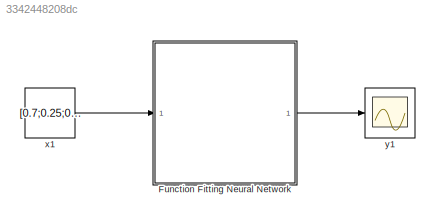
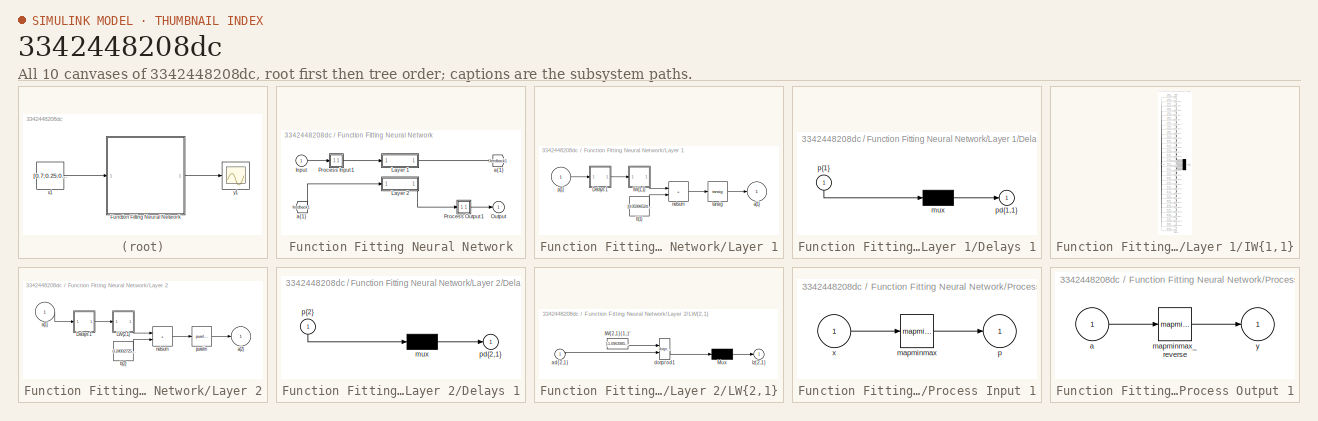
[diagram: thumbnail index - all 10 canvases of the model, root first then tree order]
MODEL slx_3342448208dc
KIND model
CONFIG AbsTol = auto
CONFIG EnableMultiTasking = off
CONFIG FixedStep = auto
CONFIG MaxStep = auto
CONFIG MinStep = auto
CONFIG RelTol = 1e-3
CONFIG SampleTimeConstraint = Unconstrained
CONFIG SolverName = VariableStepAuto
CONFIG StartTime = 0.0
CONFIG StopTime = 10.0
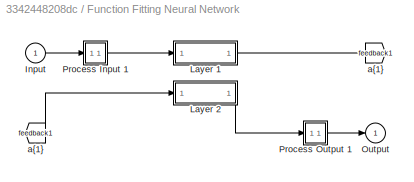
BLOCK [SubSystem] Function Fitting Neural Network
  Ports = [1, 1]
  RequestExecContextInheritance = off
BLOCK [From] Function Fitting Neural Network/ a{1} 
  GotoTag = feedback1
BLOCK [Inport] Function Fitting Neural Network/Input
  PortDimensions = 3
BLOCK [SubSystem] Function Fitting Neural Network/Layer 1
  Ports = [1, 1]
  RequestExecContextInheritance = off
BLOCK [SubSystem] Function Fitting Neural Network/Layer 1/Delays 1
  Ports = [1, 1]
  RequestExecContextInheritance = off
BLOCK [Mux] Function Fitting Neural Network/Layer 1/Delays 1/mux
  Inputs = 1
  Ports = [1, 1]
BLOCK [Outport] Function Fitting Neural Network/Layer 1/Delays 1/pd{1,1}
BLOCK [Inport] Function Fitting Neural Network/Layer 1/Delays 1/p{1}
  NameLocation = left
  PortDimensions = 3
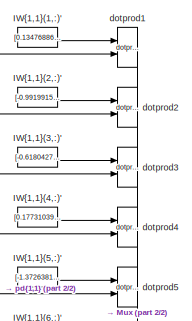
[diagram: Function Fitting Neural Network/Layer 1/IW{1,1} - part 1/2, top center region]
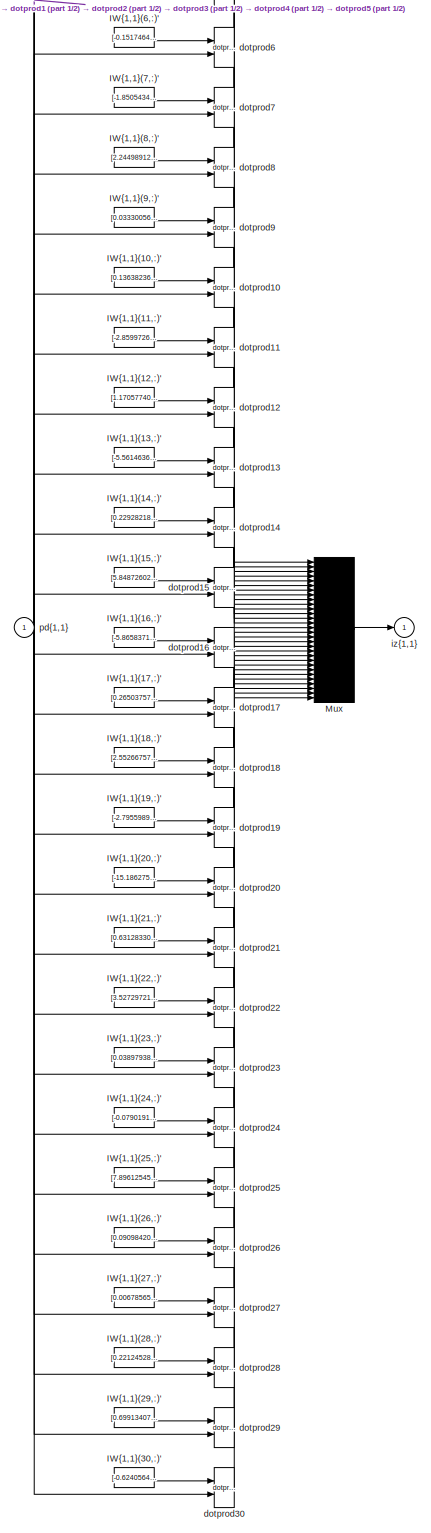
[diagram: Function Fitting Neural Network/Layer 1/IW{1,1} - part 2/2, most of the canvas]
BLOCK [SubSystem] Function Fitting Neural Network/Layer 1/IW{1,1}
  Ports = [1, 1]
  RequestExecContextInheritance = off
BLOCK [Constant] Function Fitting Neural Network/Layer 1/IW{1,1}/IW{1,1}(1,:)'
  Value = [0.13476886188853909320783941439003683626651763916015625;-0.68693358360455558653256957768462598323822021484375;0.5592746627038607254434054993907921016216278076171875]
BLOCK [Constant] Function Fitting Neural Network/Layer 1/IW{1,1}/IW{1,1}(10,:)'
  Value = [0.13638236377156942591426513899932615458965301513671875;0.71889167750939453327418959815986454486846923828125;-0.32133344097698379737693130664411000907421112060546875]
BLOCK [Constant] Function Fitting Neural Network/Layer 1/IW{1,1}/IW{1,1}(11,:)'
  Value = [-2.85997261292471183224961350788362324237823486328125;4.2121784236872112927585476427339017391204833984375;-5.03959871712873574978175383876077830791473388671875]
BLOCK [Constant] Function Fitting Neural Network/Layer 1/IW{1,1}/IW{1,1}(12,:)'
  Value = [1.1705774019782442252335386001504957675933837890625;10.262626351835397287004525423981249332427978515625;2.9896431748025005248337038210593163967132568359375]
BLOCK [Constant] Function Fitting Neural Network/Layer 1/IW{1,1}/IW{1,1}(13,:)'
  Value = [-5.56146365988403612590218472178094089031219482421875;3.579615978940695608656596959917806088924407958984375;1.56054229859358972731797621236182749271392822265625]
BLOCK [Constant] Function Fitting Neural Network/Layer 1/IW{1,1}/IW{1,1}(14,:)'
  Value = [0.2292821821929223735647696003070450387895107269287109375;0.10945454055666903325771954769152216613292694091796875;-2.078968200025813839459942755638621747493743896484375]
BLOCK [Constant] Function Fitting Neural Network/Layer 1/IW{1,1}/IW{1,1}(15,:)'
  Value = [5.84872602744547975817113183438777923583984375;-3.31022845632304640872689560637809336185455322265625;-1.2045727345707260003138117099297232925891876220703125]
BLOCK [Constant] Function Fitting Neural Network/Layer 1/IW{1,1}/IW{1,1}(16,:)'
  Value = [-5.865837130611847527461577556096017360687255859375;-1.964501470750722234015483991242945194244384765625;-2.078553816631758532906815162277780473232269287109375]
BLOCK [Constant] Function Fitting Neural Network/Layer 1/IW{1,1}/IW{1,1}(17,:)'
  Value = [0.265037573592703967761963212979026138782501220703125;10.083627344842415851644545909948647022247314453125;3.309363074567306828299706467078067362308502197265625]
BLOCK [Constant] Function Fitting Neural Network/Layer 1/IW{1,1}/IW{1,1}(18,:)'
  Value = [2.552667575495892293702127062715590000152587890625;0.59369046987254325831173673577723093330860137939453125;0.277248338925085657802327432364108972251415252685546875]
BLOCK [Constant] Function Fitting Neural Network/Layer 1/IW{1,1}/IW{1,1}(19,:)'
  Value = [-2.79559899116068688584846313460730016231536865234375;-0.0049829075759072194440335579201928339898586273193359375;-0.152430533124287947988051428183098323643207550048828125]
BLOCK [Constant] Function Fitting Neural Network/Layer 1/IW{1,1}/IW{1,1}(2,:)'
  Value = [-0.9919915376265304729486160795204341411590576171875;-3.87075174830298607275835820473730564117431640625;-8.5712936532307111292539048008620738983154296875]
BLOCK [Constant] Function Fitting Neural Network/Layer 1/IW{1,1}/IW{1,1}(20,:)'
  Value = [-15.1862757808986987839716675807721912860870361328125;-0.2716507932464973240627159611904062330722808837890625;-1.2511443433442985817549697458161972463130950927734375]
BLOCK [Constant] Function Fitting Neural Network/Layer 1/IW{1,1}/IW{1,1}(21,:)'
  Value = [0.63128330357362283375977085597696714103221893310546875;-1.208386401710074498083713478990830481052398681640625;0.3886554840521279086118511258973740041255950927734375]
BLOCK [Constant] Function Fitting Neural Network/Layer 1/IW{1,1}/IW{1,1}(22,:)'
  Value = [3.527297211556336353766027968958951532840728759765625;0.295078451506671390891511919107870198786258697509765625;0.453642243989370530510285561831551603972911834716796875]
BLOCK [Constant] Function Fitting Neural Network/Layer 1/IW{1,1}/IW{1,1}(23,:)'
  Value = [0.038979388573650582128227171097023529000580310821533203125;-1.6520753964676393454880098943249322474002838134765625;0.71767099656930344320215908737736754119396209716796875]
BLOCK [Constant] Function Fitting Neural Network/Layer 1/IW{1,1}/IW{1,1}(24,:)'
  Value = [-0.079019146445451660110137481751735322177410125732421875;-6.106719328589289119690874940715730190277099609375;-1.9582228379311648058802575178560800850391387939453125]
BLOCK [Constant] Function Fitting Neural Network/Layer 1/IW{1,1}/IW{1,1}(25,:)'
  Value = [7.8961254538060305918634185218252241611480712890625;0.53103639974659733180573084609932266175746917724609375;-2.171016837075806282797429958009161055088043212890625]
BLOCK [Constant] Function Fitting Neural Network/Layer 1/IW{1,1}/IW{1,1}(26,:)'
  Value = [0.09098420334644012619218500503848190419375896453857421875;-0.09559103965814712278170617310024681501090526580810546875;-1.72950636367753762812071727239526808261871337890625]
BLOCK [Constant] Function Fitting Neural Network/Layer 1/IW{1,1}/IW{1,1}(27,:)'
  Value = [0.006785653967772374388356393382082387688569724559783935546875;-1.44903151069326607824905295274220407009124755859375;1.02084139494055303742925389087758958339691162109375]
BLOCK [Constant] Function Fitting Neural Network/Layer 1/IW{1,1}/IW{1,1}(28,:)'
  Value = [0.22124528252091557600778060077573172748088836669921875;-0.1987373717345402857059610823853290639817714691162109375;-0.0251697329584551800218950035059606307186186313629150390625]
BLOCK [Constant] Function Fitting Neural Network/Layer 1/IW{1,1}/IW{1,1}(29,:)'
  Value = [0.69913407991534748386897035743459127843379974365234375;0.345490245563792097716060425227624364197254180908203125;0.0478273038809765849155297701145173050463199615478515625]
BLOCK [Constant] Function Fitting Neural Network/Layer 1/IW{1,1}/IW{1,1}(3,:)'
  Value = [-0.61804274154733807034034498428809456527233123779296875;0.18276064814914716460947374798706732690334320068359375;-0.735196263014759043841195307322777807712554931640625]
BLOCK [Constant] Function Fitting Neural Network/Layer 1/IW{1,1}/IW{1,1}(30,:)'
  Value = [-0.624056444104609031597874491126276552677154541015625;-0.29101910496020411134310279521741904318332672119140625;-0.01831433400605468608812742559166508726775646209716796875]
BLOCK [Constant] Function Fitting Neural Network/Layer 1/IW{1,1}/IW{1,1}(4,:)'
  Value = [0.177310394467175724830809713239432312548160552978515625;-1.7752641758423111095765989375649951398372650146484375;0.1354130103136161888954802634543739259243011474609375]
BLOCK [Constant] Function Fitting Neural Network/Layer 1/IW{1,1}/IW{1,1}(5,:)'
  Value = [-1.3726381431750163120142360639874823391437530517578125;1.07893907457415849648896255530416965484619140625;0.6375548163937254653177433283417485654354095458984375]
BLOCK [Constant] Function Fitting Neural Network/Layer 1/IW{1,1}/IW{1,1}(6,:)'
  Value = [-0.15174645477488468703342050503124482929706573486328125;-0.178663021407965694198338724163477309048175811767578125;0.1231810425190703328635066782226203940808773040771484375]
BLOCK [Constant] Function Fitting Neural Network/Layer 1/IW{1,1}/IW{1,1}(7,:)'
  Value = [-1.85054345343144976965277237468399107456207275390625;-4.68601815121654308171628144918940961360931396484375;-10.010296055496848310895074973814189434051513671875]
BLOCK [Constant] Function Fitting Neural Network/Layer 1/IW{1,1}/IW{1,1}(8,:)'
  Value = [2.244989128194972760610426121274940669536590576171875;4.00651037867865955632851182599551975727081298828125;-7.62833172119183888781890345853753387928009033203125]
BLOCK [Constant] Function Fitting Neural Network/Layer 1/IW{1,1}/IW{1,1}(9,:)'
  Value = [0.033300560269605650187685341734322719275951385498046875;-5.38233141429331762850551967858336865901947021484375;-1.6093307510522529835128580089076422154903411865234375]
BLOCK [Mux] Function Fitting Neural Network/Layer 1/IW{1,1}/Mux
  Inputs = 30
  Ports = [30, 1]
BLOCK [Reference] Function Fitting Neural Network/Layer 1/IW{1,1}/dotprod1  REF=neural/Weight Functions/dotprod
  Ports = [2, 1]
  SourceBlock = neural/Weight Functions/dotprod
  SourceProductBaseCode = NN
  SourceType = DOTPROD
BLOCK [Reference] Function Fitting Neural Network/Layer 1/IW{1,1}/dotprod10  REF=neural/Weight Functions/dotprod
  Ports = [2, 1]
  SourceBlock = neural/Weight Functions/dotprod
  SourceProductBaseCode = NN
  SourceType = DOTPROD
BLOCK [Reference] Function Fitting Neural Network/Layer 1/IW{1,1}/dotprod11  REF=neural/Weight Functions/dotprod
  Ports = [2, 1]
  SourceBlock = neural/Weight Functions/dotprod
  SourceProductBaseCode = NN
  SourceType = DOTPROD
BLOCK [Reference] Function Fitting Neural Network/Layer 1/IW{1,1}/dotprod12  REF=neural/Weight Functions/dotprod
  Ports = [2, 1]
  SourceBlock = neural/Weight Functions/dotprod
  SourceProductBaseCode = NN
  SourceType = DOTPROD
BLOCK [Reference] Function Fitting Neural Network/Layer 1/IW{1,1}/dotprod13  REF=neural/Weight Functions/dotprod
  Ports = [2, 1]
  SourceBlock = neural/Weight Functions/dotprod
  SourceProductBaseCode = NN
  SourceType = DOTPROD
BLOCK [Reference] Function Fitting Neural Network/Layer 1/IW{1,1}/dotprod14  REF=neural/Weight Functions/dotprod
  Ports = [2, 1]
  SourceBlock = neural/Weight Functions/dotprod
  SourceProductBaseCode = NN
  SourceType = DOTPROD
BLOCK [Reference] Function Fitting Neural Network/Layer 1/IW{1,1}/dotprod15  REF=neural/Weight Functions/dotprod
  Ports = [2, 1]
  SourceBlock = neural/Weight Functions/dotprod
  SourceProductBaseCode = NN
  SourceType = DOTPROD
BLOCK [Reference] Function Fitting Neural Network/Layer 1/IW{1,1}/dotprod16  REF=neural/Weight Functions/dotprod
  Ports = [2, 1]
  SourceBlock = neural/Weight Functions/dotprod
  SourceProductBaseCode = NN
  SourceType = DOTPROD
BLOCK [Reference] Function Fitting Neural Network/Layer 1/IW{1,1}/dotprod17  REF=neural/Weight Functions/dotprod
  Ports = [2, 1]
  SourceBlock = neural/Weight Functions/dotprod
  SourceProductBaseCode = NN
  SourceType = DOTPROD
BLOCK [Reference] Function Fitting Neural Network/Layer 1/IW{1,1}/dotprod18  REF=neural/Weight Functions/dotprod
  Ports = [2, 1]
  SourceBlock = neural/Weight Functions/dotprod
  SourceProductBaseCode = NN
  SourceType = DOTPROD
BLOCK [Reference] Function Fitting Neural Network/Layer 1/IW{1,1}/dotprod19  REF=neural/Weight Functions/dotprod
  Ports = [2, 1]
  SourceBlock = neural/Weight Functions/dotprod
  SourceProductBaseCode = NN
  SourceType = DOTPROD
BLOCK [Reference] Function Fitting Neural Network/Layer 1/IW{1,1}/dotprod2  REF=neural/Weight Functions/dotprod
  Ports = [2, 1]
  SourceBlock = neural/Weight Functions/dotprod
  SourceProductBaseCode = NN
  SourceType = DOTPROD
BLOCK [Reference] Function Fitting Neural Network/Layer 1/IW{1,1}/dotprod20  REF=neural/Weight Functions/dotprod
  Ports = [2, 1]
  SourceBlock = neural/Weight Functions/dotprod
  SourceProductBaseCode = NN
  SourceType = DOTPROD
BLOCK [Reference] Function Fitting Neural Network/Layer 1/IW{1,1}/dotprod21  REF=neural/Weight Functions/dotprod
  Ports = [2, 1]
  SourceBlock = neural/Weight Functions/dotprod
  SourceProductBaseCode = NN
  SourceType = DOTPROD
BLOCK [Reference] Function Fitting Neural Network/Layer 1/IW{1,1}/dotprod22  REF=neural/Weight Functions/dotprod
  Ports = [2, 1]
  SourceBlock = neural/Weight Functions/dotprod
  SourceProductBaseCode = NN
  SourceType = DOTPROD
BLOCK [Reference] Function Fitting Neural Network/Layer 1/IW{1,1}/dotprod23  REF=neural/Weight Functions/dotprod
  Ports = [2, 1]
  SourceBlock = neural/Weight Functions/dotprod
  SourceProductBaseCode = NN
  SourceType = DOTPROD
BLOCK [Reference] Function Fitting Neural Network/Layer 1/IW{1,1}/dotprod24  REF=neural/Weight Functions/dotprod
  Ports = [2, 1]
  SourceBlock = neural/Weight Functions/dotprod
  SourceProductBaseCode = NN
  SourceType = DOTPROD
BLOCK [Reference] Function Fitting Neural Network/Layer 1/IW{1,1}/dotprod25  REF=neural/Weight Functions/dotprod
  Ports = [2, 1]
  SourceBlock = neural/Weight Functions/dotprod
  SourceProductBaseCode = NN
  SourceType = DOTPROD
BLOCK [Reference] Function Fitting Neural Network/Layer 1/IW{1,1}/dotprod26  REF=neural/Weight Functions/dotprod
  Ports = [2, 1]
  SourceBlock = neural/Weight Functions/dotprod
  SourceProductBaseCode = NN
  SourceType = DOTPROD
BLOCK [Reference] Function Fitting Neural Network/Layer 1/IW{1,1}/dotprod27  REF=neural/Weight Functions/dotprod
  Ports = [2, 1]
  SourceBlock = neural/Weight Functions/dotprod
  SourceProductBaseCode = NN
  SourceType = DOTPROD
BLOCK [Reference] Function Fitting Neural Network/Layer 1/IW{1,1}/dotprod28  REF=neural/Weight Functions/dotprod
  Ports = [2, 1]
  SourceBlock = neural/Weight Functions/dotprod
  SourceProductBaseCode = NN
  SourceType = DOTPROD
BLOCK [Reference] Function Fitting Neural Network/Layer 1/IW{1,1}/dotprod29  REF=neural/Weight Functions/dotprod
  Ports = [2, 1]
  SourceBlock = neural/Weight Functions/dotprod
  SourceProductBaseCode = NN
  SourceType = DOTPROD
BLOCK [Reference] Function Fitting Neural Network/Layer 1/IW{1,1}/dotprod3  REF=neural/Weight Functions/dotprod
  Ports = [2, 1]
  SourceBlock = neural/Weight Functions/dotprod
  SourceProductBaseCode = NN
  SourceType = DOTPROD
BLOCK [Reference] Function Fitting Neural Network/Layer 1/IW{1,1}/dotprod30  REF=neural/Weight Functions/dotprod
  Ports = [2, 1]
  SourceBlock = neural/Weight Functions/dotprod
  SourceProductBaseCode = NN
  SourceType = DOTPROD
BLOCK [Reference] Function Fitting Neural Network/Layer 1/IW{1,1}/dotprod4  REF=neural/Weight Functions/dotprod
  Ports = [2, 1]
  SourceBlock = neural/Weight Functions/dotprod
  SourceProductBaseCode = NN
  SourceType = DOTPROD
BLOCK [Reference] Function Fitting Neural Network/Layer 1/IW{1,1}/dotprod5  REF=neural/Weight Functions/dotprod
  Ports = [2, 1]
  SourceBlock = neural/Weight Functions/dotprod
  SourceProductBaseCode = NN
  SourceType = DOTPROD
BLOCK [Reference] Function Fitting Neural Network/Layer 1/IW{1,1}/dotprod6  REF=neural/Weight Functions/dotprod
  Ports = [2, 1]
  SourceBlock = neural/Weight Functions/dotprod
  SourceProductBaseCode = NN
  SourceType = DOTPROD
BLOCK [Reference] Function Fitting Neural Network/Layer 1/IW{1,1}/dotprod7  REF=neural/Weight Functions/dotprod
  Ports = [2, 1]
  SourceBlock = neural/Weight Functions/dotprod
  SourceProductBaseCode = NN
  SourceType = DOTPROD
BLOCK [Reference] Function Fitting Neural Network/Layer 1/IW{1,1}/dotprod8  REF=neural/Weight Functions/dotprod
  Ports = [2, 1]
  SourceBlock = neural/Weight Functions/dotprod
  SourceProductBaseCode = NN
  SourceType = DOTPROD
BLOCK [Reference] Function Fitting Neural Network/Layer 1/IW{1,1}/dotprod9  REF=neural/Weight Functions/dotprod
  Ports = [2, 1]
  SourceBlock = neural/Weight Functions/dotprod
  SourceProductBaseCode = NN
  SourceType = DOTPROD
BLOCK [Outport] Function Fitting Neural Network/Layer 1/IW{1,1}/iz{1,1}
BLOCK [Inport] Function Fitting Neural Network/Layer 1/IW{1,1}/pd{1,1}
  PortDimensions = 3
BLOCK [Outport] Function Fitting Neural Network/Layer 1/a{1}
  InitialOutput = [0;0;0;0;0;0;0;0;0;0;0;0;0;0;0;0;0;0;0;0;0;0;0;0;0;0;0;0;0;0]
BLOCK [Constant] Function Fitting Neural Network/Layer 1/b{1}
  Value = [0.059965243513989664736474338724292465485632419586181640625;0.687601990108360094922090866020880639553070068359375;-0.51249974001643339160949608412920497357845306396484375;-0.23565963905034548186989695750526152551174163818359375;-0.32370977797441058410043979165493510663509368896484375;-0.10733957403649661832556461149579263292253017425537109375;0.496814612833498703281520647578872740268707275390625;...<+1282ch>
BLOCK [Sum] Function Fitting Neural Network/Layer 1/netsum
  IconShape = rectangular
  InputSameDT = on
  Inputs = 2
  OutDataTypeStr = Inherit: Same as first input
  Ports = [2, 1]
  SaturateOnIntegerOverflow = on
BLOCK [Inport] Function Fitting Neural Network/Layer 1/p{1}
  PortDimensions = 3
BLOCK [Reference] Function Fitting Neural Network/Layer 1/tansig  REF=neural/Transfer Functions/tansig
  Ports = [1, 1]
  SourceBlock = neural/Transfer Functions/tansig
  SourceProductBaseCode = NN
  SourceType = TANSIG
BLOCK [SubSystem] Function Fitting Neural Network/Layer 2
  Ports = [1, 1]
  RequestExecContextInheritance = off
BLOCK [SubSystem] Function Fitting Neural Network/Layer 2/Delays 1
  Ports = [1, 1]
  RequestExecContextInheritance = off
BLOCK [Mux] Function Fitting Neural Network/Layer 2/Delays 1/mux
  Inputs = 1
  Ports = [1, 1]
BLOCK [Outport] Function Fitting Neural Network/Layer 2/Delays 1/pd{2,1}
BLOCK [Inport] Function Fitting Neural Network/Layer 2/Delays 1/p{2}
  NameLocation = left
  PortDimensions = 30
BLOCK [SubSystem] Function Fitting Neural Network/Layer 2/LW{2,1}
  Ports = [1, 1]
  RequestExecContextInheritance = off
BLOCK [Constant] Function Fitting Neural Network/Layer 2/LW{2,1}/IW{2,1}(1,:)'
  Value = [-1.0963985972834924265129075138247571885585784912109375;-0.1739758066582154094614764971993281506001949310302734375;-1.6753827711702535818716341964318417012691497802734375;1.92993014358969627863871210138313472270965576171875;0.2835903513375865880874471258721314370632171630859375;0.2722298308177781844818809986463747918605804443359375;0.1549103754520816667028526580907055176794528961181640625;0.01746...<+1271ch>
BLOCK [Mux] Function Fitting Neural Network/Layer 2/LW{2,1}/Mux
  Inputs = 1
  Ports = [1, 1]
BLOCK [Inport] Function Fitting Neural Network/Layer 2/LW{2,1}/ad{2,1}
  PortDimensions = 30
BLOCK [Reference] Function Fitting Neural Network/Layer 2/LW{2,1}/dotprod1  REF=neural/Weight Functions/dotprod
  Ports = [2, 1]
  SourceBlock = neural/Weight Functions/dotprod
  SourceProductBaseCode = NN
  SourceType = DOTPROD
BLOCK [Outport] Function Fitting Neural Network/Layer 2/LW{2,1}/lz{2,1}
BLOCK [Inport] Function Fitting Neural Network/Layer 2/a{1} 
  PortDimensions = 30
BLOCK [Outport] Function Fitting Neural Network/Layer 2/a{2}
  InitialOutput = 0
BLOCK [Constant] Function Fitting Neural Network/Layer 2/b{2}
  Value = -0.240027253829692366338122155866585671901702880859375
BLOCK [Sum] Function Fitting Neural Network/Layer 2/netsum
  IconShape = rectangular
  InputSameDT = on
  Inputs = 2
  OutDataTypeStr = Inherit: Same as first input
  Ports = [2, 1]
  SaturateOnIntegerOverflow = on
BLOCK [Reference] Function Fitting Neural Network/Layer 2/purelin  REF=neural/Transfer Functions/purelin
  Ports = [1, 1]
  SourceBlock = neural/Transfer Functions/purelin
  SourceProductBaseCode = NN
  SourceType = PURELIN
BLOCK [Outport] Function Fitting Neural Network/Output
  InitialOutput = 0
BLOCK [SubSystem] Function Fitting Neural Network/Process Input 1
  Ports = [1, 1]
  RequestExecContextInheritance = off
BLOCK [Reference] Function Fitting Neural Network/Process Input 1/mapminmax  REF=neural/Processing Functions/mapminmax
  Ports = [1, 1]
  SourceBlock = neural/Processing Functions/mapminmax
  SourceProductBaseCode = NN
  SourceType = MAPMINMAX Preprocess
BLOCK [Outport] Function Fitting Neural Network/Process Input 1/p
  PortDimensions = 3
BLOCK [Inport] Function Fitting Neural Network/Process Input 1/x
  PortDimensions = 3
BLOCK [SubSystem] Function Fitting Neural Network/Process Output 1
  Ports = [1, 1]
  RequestExecContextInheritance = off
BLOCK [Inport] Function Fitting Neural Network/Process Output 1/a
  PortDimensions = 1
BLOCK [Reference] Function Fitting Neural Network/Process Output 1/mapminmax_reverse  REF=neural/Processing Functions/mapminmax_reverse
  Ports = [1, 1]
  SourceBlock = neural/Processing Functions/mapminmax_reverse
  SourceProductBaseCode = NN
  SourceType = MAPMINMAX Reverse Process
BLOCK [Outport] Function Fitting Neural Network/Process Output 1/y
  PortDimensions = 1
BLOCK [Goto] Function Fitting Neural Network/a{1}
  GotoTag = feedback1
BLOCK [Constant] x1
  SampleTime = 1
  Value = [0.7;0.25;0.36]
BLOCK [Scope] y1
  Floating = off
  NumInputPorts = 1
  Ports = [1]
LINE Function Fitting Neural Network/ a{1} :1 -> Function Fitting Neural Network/Layer 2:1
LINE Function Fitting Neural Network/Input:1 -> Function Fitting Neural Network/Process Input 1:1
LINE Function Fitting Neural Network/Layer 1/Delays 1/mux:1 -> Function Fitting Neural Network/Layer 1/Delays 1/pd{1,1}:1
LINE Function Fitting Neural Network/Layer 1/Delays 1/p{1}:1 -> Function Fitting Neural Network/Layer 1/Delays 1/mux:1
LINE Function Fitting Neural Network/Layer 1/Delays 1:1 -> Function Fitting Neural Network/Layer 1/IW{1,1}:1
LINE Function Fitting Neural Network/Layer 1/IW{1,1}/IW{1,1}(1,:)':1 -> Function Fitting Neural Network/Layer 1/IW{1,1}/dotprod1:1
LINE Function Fitting Neural Network/Layer 1/IW{1,1}/IW{1,1}(10,:)':1 -> Function Fitting Neural Network/Layer 1/IW{1,1}/dotprod10:1
LINE Function Fitting Neural Network/Layer 1/IW{1,1}/IW{1,1}(11,:)':1 -> Function Fitting Neural Network/Layer 1/IW{1,1}/dotprod11:1
LINE Function Fitting Neural Network/Layer 1/IW{1,1}/IW{1,1}(12,:)':1 -> Function Fitting Neural Network/Layer 1/IW{1,1}/dotprod12:1
LINE Function Fitting Neural Network/Layer 1/IW{1,1}/IW{1,1}(13,:)':1 -> Function Fitting Neural Network/Layer 1/IW{1,1}/dotprod13:1
LINE Function Fitting Neural Network/Layer 1/IW{1,1}/IW{1,1}(14,:)':1 -> Function Fitting Neural Network/Layer 1/IW{1,1}/dotprod14:1
LINE Function Fitting Neural Network/Layer 1/IW{1,1}/IW{1,1}(15,:)':1 -> Function Fitting Neural Network/Layer 1/IW{1,1}/dotprod15:1
LINE Function Fitting Neural Network/Layer 1/IW{1,1}/IW{1,1}(16,:)':1 -> Function Fitting Neural Network/Layer 1/IW{1,1}/dotprod16:1
LINE Function Fitting Neural Network/Layer 1/IW{1,1}/IW{1,1}(17,:)':1 -> Function Fitting Neural Network/Layer 1/IW{1,1}/dotprod17:1
LINE Function Fitting Neural Network/Layer 1/IW{1,1}/IW{1,1}(18,:)':1 -> Function Fitting Neural Network/Layer 1/IW{1,1}/dotprod18:1
LINE Function Fitting Neural Network/Layer 1/IW{1,1}/IW{1,1}(19,:)':1 -> Function Fitting Neural Network/Layer 1/IW{1,1}/dotprod19:1
LINE Function Fitting Neural Network/Layer 1/IW{1,1}/IW{1,1}(2,:)':1 -> Function Fitting Neural Network/Layer 1/IW{1,1}/dotprod2:1
LINE Function Fitting Neural Network/Layer 1/IW{1,1}/IW{1,1}(20,:)':1 -> Function Fitting Neural Network/Layer 1/IW{1,1}/dotprod20:1
LINE Function Fitting Neural Network/Layer 1/IW{1,1}/IW{1,1}(21,:)':1 -> Function Fitting Neural Network/Layer 1/IW{1,1}/dotprod21:1
LINE Function Fitting Neural Network/Layer 1/IW{1,1}/IW{1,1}(22,:)':1 -> Function Fitting Neural Network/Layer 1/IW{1,1}/dotprod22:1
LINE Function Fitting Neural Network/Layer 1/IW{1,1}/IW{1,1}(23,:)':1 -> Function Fitting Neural Network/Layer 1/IW{1,1}/dotprod23:1
LINE Function Fitting Neural Network/Layer 1/IW{1,1}/IW{1,1}(24,:)':1 -> Function Fitting Neural Network/Layer 1/IW{1,1}/dotprod24:1
LINE Function Fitting Neural Network/Layer 1/IW{1,1}/IW{1,1}(25,:)':1 -> Function Fitting Neural Network/Layer 1/IW{1,1}/dotprod25:1
LINE Function Fitting Neural Network/Layer 1/IW{1,1}/IW{1,1}(26,:)':1 -> Function Fitting Neural Network/Layer 1/IW{1,1}/dotprod26:1
LINE Function Fitting Neural Network/Layer 1/IW{1,1}/IW{1,1}(27,:)':1 -> Function Fitting Neural Network/Layer 1/IW{1,1}/dotprod27:1
LINE Function Fitting Neural Network/Layer 1/IW{1,1}/IW{1,1}(28,:)':1 -> Function Fitting Neural Network/Layer 1/IW{1,1}/dotprod28:1
LINE Function Fitting Neural Network/Layer 1/IW{1,1}/IW{1,1}(29,:)':1 -> Function Fitting Neural Network/Layer 1/IW{1,1}/dotprod29:1
LINE Function Fitting Neural Network/Layer 1/IW{1,1}/IW{1,1}(3,:)':1 -> Function Fitting Neural Network/Layer 1/IW{1,1}/dotprod3:1
LINE Function Fitting Neural Network/Layer 1/IW{1,1}/IW{1,1}(30,:)':1 -> Function Fitting Neural Network/Layer 1/IW{1,1}/dotprod30:1
LINE Function Fitting Neural Network/Layer 1/IW{1,1}/IW{1,1}(4,:)':1 -> Function Fitting Neural Network/Layer 1/IW{1,1}/dotprod4:1
LINE Function Fitting Neural Network/Layer 1/IW{1,1}/IW{1,1}(5,:)':1 -> Function Fitting Neural Network/Layer 1/IW{1,1}/dotprod5:1
LINE Function Fitting Neural Network/Layer 1/IW{1,1}/IW{1,1}(6,:)':1 -> Function Fitting Neural Network/Layer 1/IW{1,1}/dotprod6:1
LINE Function Fitting Neural Network/Layer 1/IW{1,1}/IW{1,1}(7,:)':1 -> Function Fitting Neural Network/Layer 1/IW{1,1}/dotprod7:1
LINE Function Fitting Neural Network/Layer 1/IW{1,1}/IW{1,1}(8,:)':1 -> Function Fitting Neural Network/Layer 1/IW{1,1}/dotprod8:1
LINE Function Fitting Neural Network/Layer 1/IW{1,1}/IW{1,1}(9,:)':1 -> Function Fitting Neural Network/Layer 1/IW{1,1}/dotprod9:1
LINE Function Fitting Neural Network/Layer 1/IW{1,1}/Mux:1 -> Function Fitting Neural Network/Layer 1/IW{1,1}/iz{1,1}:1
LINE Function Fitting Neural Network/Layer 1/IW{1,1}/dotprod10:1 -> Function Fitting Neural Network/Layer 1/IW{1,1}/Mux:10
LINE Function Fitting Neural Network/Layer 1/IW{1,1}/dotprod11:1 -> Function Fitting Neural Network/Layer 1/IW{1,1}/Mux:11
LINE Function Fitting Neural Network/Layer 1/IW{1,1}/dotprod12:1 -> Function Fitting Neural Network/Layer 1/IW{1,1}/Mux:12
LINE Function Fitting Neural Network/Layer 1/IW{1,1}/dotprod13:1 -> Function Fitting Neural Network/Layer 1/IW{1,1}/Mux:13
LINE Function Fitting Neural Network/Layer 1/IW{1,1}/dotprod14:1 -> Function Fitting Neural Network/Layer 1/IW{1,1}/Mux:14
LINE Function Fitting Neural Network/Layer 1/IW{1,1}/dotprod15:1 -> Function Fitting Neural Network/Layer 1/IW{1,1}/Mux:15
LINE Function Fitting Neural Network/Layer 1/IW{1,1}/dotprod16:1 -> Function Fitting Neural Network/Layer 1/IW{1,1}/Mux:16
LINE Function Fitting Neural Network/Layer 1/IW{1,1}/dotprod17:1 -> Function Fitting Neural Network/Layer 1/IW{1,1}/Mux:17
LINE Function Fitting Neural Network/Layer 1/IW{1,1}/dotprod18:1 -> Function Fitting Neural Network/Layer 1/IW{1,1}/Mux:18
LINE Function Fitting Neural Network/Layer 1/IW{1,1}/dotprod19:1 -> Function Fitting Neural Network/Layer 1/IW{1,1}/Mux:19
LINE Function Fitting Neural Network/Layer 1/IW{1,1}/dotprod1:1 -> Function Fitting Neural Network/Layer 1/IW{1,1}/Mux:1
LINE Function Fitting Neural Network/Layer 1/IW{1,1}/dotprod20:1 -> Function Fitting Neural Network/Layer 1/IW{1,1}/Mux:20
LINE Function Fitting Neural Network/Layer 1/IW{1,1}/dotprod21:1 -> Function Fitting Neural Network/Layer 1/IW{1,1}/Mux:21
LINE Function Fitting Neural Network/Layer 1/IW{1,1}/dotprod22:1 -> Function Fitting Neural Network/Layer 1/IW{1,1}/Mux:22
LINE Function Fitting Neural Network/Layer 1/IW{1,1}/dotprod23:1 -> Function Fitting Neural Network/Layer 1/IW{1,1}/Mux:23
LINE Function Fitting Neural Network/Layer 1/IW{1,1}/dotprod24:1 -> Function Fitting Neural Network/Layer 1/IW{1,1}/Mux:24
LINE Function Fitting Neural Network/Layer 1/IW{1,1}/dotprod25:1 -> Function Fitting Neural Network/Layer 1/IW{1,1}/Mux:25
LINE Function Fitting Neural Network/Layer 1/IW{1,1}/dotprod26:1 -> Function Fitting Neural Network/Layer 1/IW{1,1}/Mux:26
LINE Function Fitting Neural Network/Layer 1/IW{1,1}/dotprod27:1 -> Function Fitting Neural Network/Layer 1/IW{1,1}/Mux:27
LINE Function Fitting Neural Network/Layer 1/IW{1,1}/dotprod28:1 -> Function Fitting Neural Network/Layer 1/IW{1,1}/Mux:28
LINE Function Fitting Neural Network/Layer 1/IW{1,1}/dotprod29:1 -> Function Fitting Neural Network/Layer 1/IW{1,1}/Mux:29
LINE Function Fitting Neural Network/Layer 1/IW{1,1}/dotprod2:1 -> Function Fitting Neural Network/Layer 1/IW{1,1}/Mux:2
LINE Function Fitting Neural Network/Layer 1/IW{1,1}/dotprod30:1 -> Function Fitting Neural Network/Layer 1/IW{1,1}/Mux:30
LINE Function Fitting Neural Network/Layer 1/IW{1,1}/dotprod3:1 -> Function Fitting Neural Network/Layer 1/IW{1,1}/Mux:3
LINE Function Fitting Neural Network/Layer 1/IW{1,1}/dotprod4:1 -> Function Fitting Neural Network/Layer 1/IW{1,1}/Mux:4
LINE Function Fitting Neural Network/Layer 1/IW{1,1}/dotprod5:1 -> Function Fitting Neural Network/Layer 1/IW{1,1}/Mux:5
LINE Function Fitting Neural Network/Layer 1/IW{1,1}/dotprod6:1 -> Function Fitting Neural Network/Layer 1/IW{1,1}/Mux:6
LINE Function Fitting Neural Network/Layer 1/IW{1,1}/dotprod7:1 -> Function Fitting Neural Network/Layer 1/IW{1,1}/Mux:7
LINE Function Fitting Neural Network/Layer 1/IW{1,1}/dotprod8:1 -> Function Fitting Neural Network/Layer 1/IW{1,1}/Mux:8
LINE Function Fitting Neural Network/Layer 1/IW{1,1}/dotprod9:1 -> Function Fitting Neural Network/Layer 1/IW{1,1}/Mux:9
NET Function Fitting Neural Network/Layer 1/IW{1,1}/pd{1,1}:1 -> Function Fitting Neural Network/Layer 1/IW{1,1}/dotprod10:2, Function Fitting Neural Network/Layer 1/IW{1,1}/dotprod11:2, Function Fitting Neural Network/Layer 1/IW{1,1}/dotprod12:2, Function Fitting Neural Network/Layer 1/IW{1,1}/dotprod13:2, Function Fitting Neural Network/Layer 1/IW{1,1}/dotprod14:2, Function Fitting Neural Network/Layer 1/IW{1,1}/dotprod15:2, Function Fitting Neural Network/Layer 1/IW{1,1}/dotprod16:2, Function Fitting Neural Network/Layer 1/IW{1,1}/dotprod17:2, Function Fitting Neural Network/Layer 1/IW{1,1}/dotprod18:2, Function Fitting Neural Network/Layer 1/IW{1,1}/dotprod19:2, Function Fitting Neural Network/Layer 1/IW{1,1}/dotprod1:2, Function Fitting Neural Network/Layer 1/IW{1,1}/dotprod20:2, Function Fitting Neural Network/Layer 1/IW{1,1}/dotprod21:2, Function Fitting Neural Network/Layer 1/IW{1,1}/dotprod22:2, Function Fitting Neural Network/Layer 1/IW{1,1}/dotprod23:2, Function Fitting Neural Network/Layer 1/IW{1,1}/dotprod24:2, Function Fitting Neural Network/Layer 1/IW{1,1}/dotprod25:2, Function Fitting Neural Network/Layer 1/IW{1,1}/dotprod26:2, Function Fitting Neural Network/Layer 1/IW{1,1}/dotprod27:2, Function Fitting Neural Network/Layer 1/IW{1,1}/dotprod28:2, Function Fitting Neural Network/Layer 1/IW{1,1}/dotprod29:2, Function Fitting Neural Network/Layer 1/IW{1,1}/dotprod2:2, Function Fitting Neural Network/Layer 1/IW{1,1}/dotprod30:2, Function Fitting Neural Network/Layer 1/IW{1,1}/dotprod3:2, Function Fitting Neural Network/Layer 1/IW{1,1}/dotprod4:2, Function Fitting Neural Network/Layer 1/IW{1,1}/dotprod5:2, Function Fitting Neural Network/Layer 1/IW{1,1}/dotprod6:2, Function Fitting Neural Network/Layer 1/IW{1,1}/dotprod7:2, Function Fitting Neural Network/Layer 1/IW{1,1}/dotprod8:2, Function Fitting Neural Network/Layer 1/IW{1,1}/dotprod9:2
LINE Function Fitting Neural Network/Layer 1/IW{1,1}:1 -> Function Fitting Neural Network/Layer 1/netsum:1
LINE Function Fitting Neural Network/Layer 1/b{1}:1 -> Function Fitting Neural Network/Layer 1/netsum:2
LINE Function Fitting Neural Network/Layer 1/netsum:1 -> Function Fitting Neural Network/Layer 1/tansig:1
LINE Function Fitting Neural Network/Layer 1/p{1}:1 -> Function Fitting Neural Network/Layer 1/Delays 1:1
LINE Function Fitting Neural Network/Layer 1/tansig:1 -> Function Fitting Neural Network/Layer 1/a{1}:1
LINE Function Fitting Neural Network/Layer 1:1 -> Function Fitting Neural Network/a{1}:1
LINE Function Fitting Neural Network/Layer 2/Delays 1/mux:1 -> Function Fitting Neural Network/Layer 2/Delays 1/pd{2,1}:1
LINE Function Fitting Neural Network/Layer 2/Delays 1/p{2}:1 -> Function Fitting Neural Network/Layer 2/Delays 1/mux:1
LINE Function Fitting Neural Network/Layer 2/Delays 1:1 -> Function Fitting Neural Network/Layer 2/LW{2,1}:1
LINE Function Fitting Neural Network/Layer 2/LW{2,1}/IW{2,1}(1,:)':1 -> Function Fitting Neural Network/Layer 2/LW{2,1}/dotprod1:1
LINE Function Fitting Neural Network/Layer 2/LW{2,1}/Mux:1 -> Function Fitting Neural Network/Layer 2/LW{2,1}/lz{2,1}:1
LINE Function Fitting Neural Network/Layer 2/LW{2,1}/ad{2,1}:1 -> Function Fitting Neural Network/Layer 2/LW{2,1}/dotprod1:2
LINE Function Fitting Neural Network/Layer 2/LW{2,1}/dotprod1:1 -> Function Fitting Neural Network/Layer 2/LW{2,1}/Mux:1
LINE Function Fitting Neural Network/Layer 2/LW{2,1}:1 -> Function Fitting Neural Network/Layer 2/netsum:1
LINE Function Fitting Neural Network/Layer 2/a{1} :1 -> Function Fitting Neural Network/Layer 2/Delays 1:1
LINE Function Fitting Neural Network/Layer 2/b{2}:1 -> Function Fitting Neural Network/Layer 2/netsum:2
LINE Function Fitting Neural Network/Layer 2/netsum:1 -> Function Fitting Neural Network/Layer 2/purelin:1
LINE Function Fitting Neural Network/Layer 2/purelin:1 -> Function Fitting Neural Network/Layer 2/a{2}:1
LINE Function Fitting Neural Network/Layer 2:1 -> Function Fitting Neural Network/Process Output 1:1
LINE Function Fitting Neural Network/Process Input 1/mapminmax:1 -> Function Fitting Neural Network/Process Input 1/p:1
LINE Function Fitting Neural Network/Process Input 1/x:1 -> Function Fitting Neural Network/Process Input 1/mapminmax:1
LINE Function Fitting Neural Network/Process Input 1:1 -> Function Fitting Neural Network/Layer 1:1
LINE Function Fitting Neural Network/Process Output 1/a:1 -> Function Fitting Neural Network/Process Output 1/mapminmax_reverse:1
LINE Function Fitting Neural Network/Process Output 1/mapminmax_reverse:1 -> Function Fitting Neural Network/Process Output 1/y:1
LINE Function Fitting Neural Network/Process Output 1:1 -> Function Fitting Neural Network/Output:1
LINE Function Fitting Neural Network:1 -> y1:1
LINE x1:1 -> Function Fitting Neural Network:1
note: NET lines group one-source signal fan-out (src -> all destinations, sorted); 1:1 wires keep LINE
